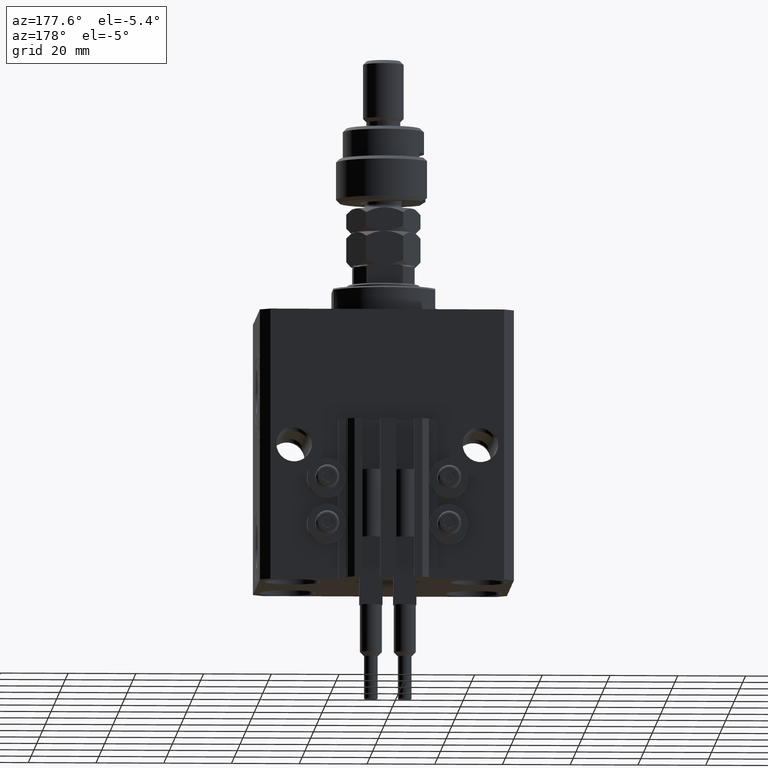
[diagram: clean part render]
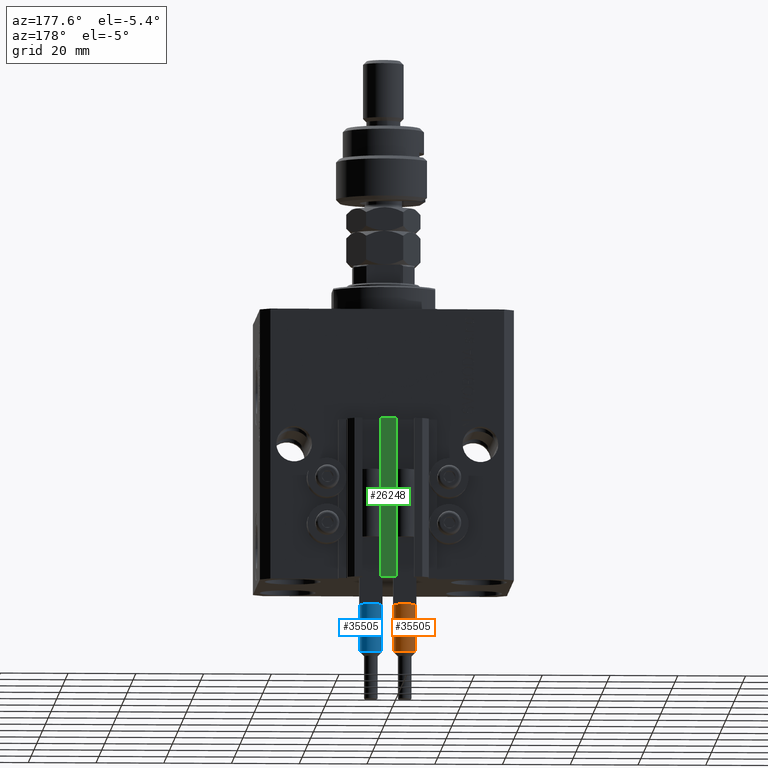
[diagram: same view with three faces highlighted in distinct colors, each labeled with its STEP entity id]
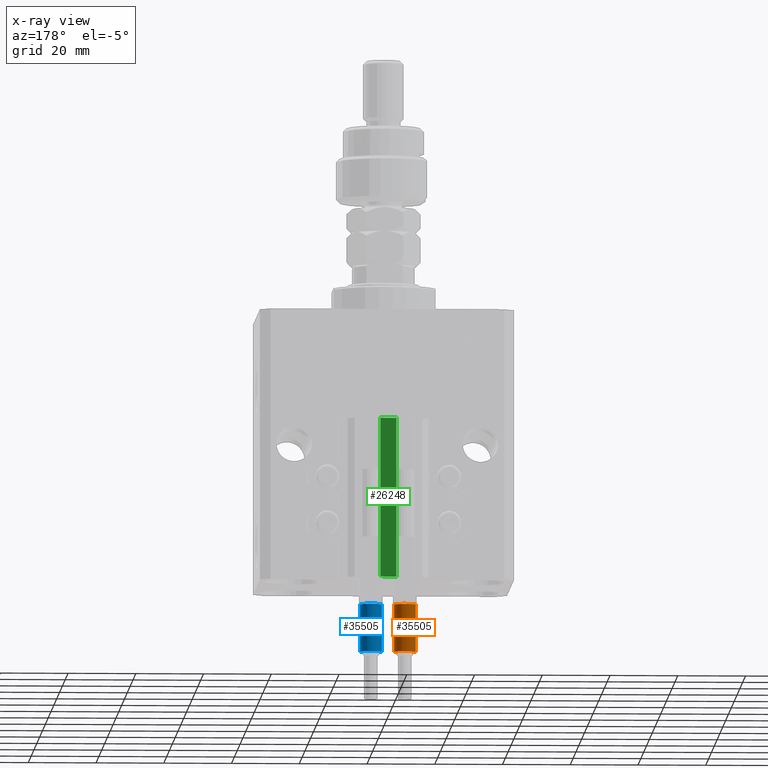
[diagram: x-ray of the same camera — body ghosted, the three highlighted faces saturated]
A machine part, auxiliary view with three faces highlighted in distinct colors.
The next image is the same camera in x-ray (body ghosted, the three faces saturated) — at least one of them is partly hidden behind the body in this view.
Their STEP definitions:

[orange] entity #35505 — the highlighted cylindrical surface (edge-blend (fillet) strip) has radius 3.25 mm, axis along (0, 0, 1).
#668 = EDGE_LOOP ( 'NONE', ( #35798, #33182, #36519, #5845, #20843, #8035 ) ) ;
#1826 = VERTEX_POINT ( 'NONE', #37590 ) ;
#3516 = DIRECTION ( 'NONE',  ( 1.000000000000000000, 0.000000000000000000, 0.000000000000000000 ) ) ;
#4477 = EDGE_CURVE ( 'NONE', #39780, #16009, #47089, .T. ) ;
#4652 = CARTESIAN_POINT ( 'NONE',  ( 3.250000000000000444, 3.980102097228898231E-16, 56.00000000000000000 ) ) ;
#5578 = DIRECTION ( 'NONE',  ( -1.000000000000000000, 0.000000000000000000, 0.000000000000000000 ) ) ;
#5845 = ORIENTED_EDGE ( 'NONE', *, *, #32558, .T. ) ;
#5905 = LINE ( 'NONE', #21478, #21469 ) ;
#7047 = CARTESIAN_POINT ( 'NONE',  ( -3.250000000000000444, 0.000000000000000000, 40.00000000000000000 ) ) ;
#7076 = EDGE_CURVE ( 'NONE', #1826, #16077, #10567, .T. ) ;
#7965 = AXIS2_PLACEMENT_3D ( 'NONE', #25428, #21351, #20332 ) ;
#8035 = ORIENTED_EDGE ( 'NONE', *, *, #32147, .F. ) ;
#8761 = CIRCLE ( 'NONE', #7965, 3.250000000000000444 ) ;
#8935 = EDGE_CURVE ( 'NONE', #16077, #24088, #39639, .T. ) ;
#10425 = CARTESIAN_POINT ( 'NONE',  ( 0.000000000000000000, 0.000000000000000000, 53.99999999999998579 ) ) ;
#10567 = CIRCLE ( 'NONE', #21175, 3.250000000000000444 ) ;
#10577 = CARTESIAN_POINT ( 'NONE',  ( -2.883140648667699146, 1.500000000000000000, 40.00000000000000000 ) ) ;
#12986 = CYLINDRICAL_SURFACE ( 'NONE', #46821, 3.250000000000000444 ) ;
#13893 = VECTOR ( 'NONE', #16391, 1000.000000000000000 ) ;
#14669 = CARTESIAN_POINT ( 'NONE',  ( 0.000000000000000000, 0.000000000000000000, 40.00000000000000000 ) ) ;
#15465 = CARTESIAN_POINT ( 'NONE',  ( 3.250000000000000444, 3.980102097228898231E-16, 53.99999999999998579 ) ) ;
#16009 = VERTEX_POINT ( 'NONE', #7047 ) ;
#16077 = VERTEX_POINT ( 'NONE', #15465 ) ;
#16391 = DIRECTION ( 'NONE',  ( -0.000000000000000000, -0.000000000000000000, -1.000000000000000000 ) ) ;
#16810 = CARTESIAN_POINT ( 'NONE',  ( 0.000000000000000000, 0.000000000000000000, 56.00000000000000000 ) ) ;
#18980 = AXIS2_PLACEMENT_3D ( 'NONE', #22418, #42082, #3516 ) ;
#20332 = DIRECTION ( 'NONE',  ( 1.000000000000000000, 0.000000000000000000, 0.000000000000000000 ) ) ;
#20843 = ORIENTED_EDGE ( 'NONE', *, *, #4477, .T. ) ;
#21175 = AXIS2_PLACEMENT_3D ( 'NONE', #10425, #32635, #36737 ) ;
#21351 = DIRECTION ( 'NONE',  ( 0.000000000000000000, 0.000000000000000000, 1.000000000000000000 ) ) ;
#21469 = VECTOR ( 'NONE', #37050, 1000.000000000000000 ) ;
#21478 = CARTESIAN_POINT ( 'NONE',  ( -3.250000000000000444, 0.000000000000000000, 56.00000000000000000 ) ) ;
#22418 = CARTESIAN_POINT ( 'NONE',  ( 0.000000000000000000, 0.000000000000000000, 40.00000000000000000 ) ) ;
#24088 = VERTEX_POINT ( 'NONE', #29073 ) ;
#25122 = CARTESIAN_POINT ( 'NONE',  ( 2.883140648667699146, 1.500000000000000000, 40.00000000000000000 ) ) ;
#25428 = CARTESIAN_POINT ( 'NONE',  ( 0.000000000000000000, 0.000000000000000000, 40.00000000000000000 ) ) ;
#26645 = DIRECTION ( 'NONE',  ( 0.000000000000000000, 0.000000000000000000, 1.000000000000000000 ) ) ;
#27991 = EDGE_CURVE ( 'NONE', #24088, #29485, #8761, .T. ) ;
#29073 = CARTESIAN_POINT ( 'NONE',  ( 3.250000000000000444, 3.980102097228898231E-16, 40.00000000000000000 ) ) ;
#29485 = VERTEX_POINT ( 'NONE', #25122 ) ;
#29566 = CIRCLE ( 'NONE', #18980, 3.250000000000000444 ) ;
#29981 = AXIS2_PLACEMENT_3D ( 'NONE', #14669, #26645, #49640 ) ;
#32147 = EDGE_CURVE ( 'NONE', #1826, #16009, #5905, .T. ) ;
#32366 = DIRECTION ( 'NONE',  ( -0.000000000000000000, -0.000000000000000000, -1.000000000000000000 ) ) ;
#32558 = EDGE_CURVE ( 'NONE', #29485, #39780, #29566, .T. ) ;
#32635 = DIRECTION ( 'NONE',  ( 0.000000000000000000, 0.000000000000000000, -1.000000000000000000 ) ) ;
#33182 = ORIENTED_EDGE ( 'NONE', *, *, #8935, .T. ) ;
#35505 = ADVANCED_FACE ( 'NONE', ( #48205 ), #12986, .T. ) ;
#35798 = ORIENTED_EDGE ( 'NONE', *, *, #7076, .T. ) ;
#36519 = ORIENTED_EDGE ( 'NONE', *, *, #27991, .T. ) ;
#36737 = DIRECTION ( 'NONE',  ( 1.000000000000000000, 0.000000000000000000, 0.000000000000000000 ) ) ;
#37050 = DIRECTION ( 'NONE',  ( -0.000000000000000000, -0.000000000000000000, -1.000000000000000000 ) ) ;
#37590 = CARTESIAN_POINT ( 'NONE',  ( -3.250000000000000444, 0.000000000000000000, 53.99999999999998579 ) ) ;
#39639 = LINE ( 'NONE', #4652, #13893 ) ;
#39780 = VERTEX_POINT ( 'NONE', #10577 ) ;
#42082 = DIRECTION ( 'NONE',  ( 0.000000000000000000, 0.000000000000000000, 1.000000000000000000 ) ) ;
#46821 = AXIS2_PLACEMENT_3D ( 'NONE', #16810, #32366, #5578 ) ;
#47089 = CIRCLE ( 'NONE', #29981, 3.250000000000000444 ) ;
#48205 = FACE_OUTER_BOUND ( 'NONE', #668, .T. ) ;
#49640 = DIRECTION ( 'NONE',  ( 1.000000000000000000, 0.000000000000000000, 0.000000000000000000 ) ) ;

[blue] entity #35505 — the highlighted cylindrical surface (edge-blend (fillet) strip) has radius 3.25 mm, axis along (0, 0, 1).
#668 = EDGE_LOOP ( 'NONE', ( #35798, #33182, #36519, #5845, #20843, #8035 ) ) ;
#1826 = VERTEX_POINT ( 'NONE', #37590 ) ;
#3516 = DIRECTION ( 'NONE',  ( 1.000000000000000000, 0.000000000000000000, 0.000000000000000000 ) ) ;
#4477 = EDGE_CURVE ( 'NONE', #39780, #16009, #47089, .T. ) ;
#4652 = CARTESIAN_POINT ( 'NONE',  ( 3.250000000000000444, 3.980102097228898231E-16, 56.00000000000000000 ) ) ;
#5578 = DIRECTION ( 'NONE',  ( -1.000000000000000000, 0.000000000000000000, 0.000000000000000000 ) ) ;
#5845 = ORIENTED_EDGE ( 'NONE', *, *, #32558, .T. ) ;
#5905 = LINE ( 'NONE', #21478, #21469 ) ;
#7047 = CARTESIAN_POINT ( 'NONE',  ( -3.250000000000000444, 0.000000000000000000, 40.00000000000000000 ) ) ;
#7076 = EDGE_CURVE ( 'NONE', #1826, #16077, #10567, .T. ) ;
#7965 = AXIS2_PLACEMENT_3D ( 'NONE', #25428, #21351, #20332 ) ;
#8035 = ORIENTED_EDGE ( 'NONE', *, *, #32147, .F. ) ;
#8761 = CIRCLE ( 'NONE', #7965, 3.250000000000000444 ) ;
#8935 = EDGE_CURVE ( 'NONE', #16077, #24088, #39639, .T. ) ;
#10425 = CARTESIAN_POINT ( 'NONE',  ( 0.000000000000000000, 0.000000000000000000, 53.99999999999998579 ) ) ;
#10567 = CIRCLE ( 'NONE', #21175, 3.250000000000000444 ) ;
#10577 = CARTESIAN_POINT ( 'NONE',  ( -2.883140648667699146, 1.500000000000000000, 40.00000000000000000 ) ) ;
#12986 = CYLINDRICAL_SURFACE ( 'NONE', #46821, 3.250000000000000444 ) ;
#13893 = VECTOR ( 'NONE', #16391, 1000.000000000000000 ) ;
#14669 = CARTESIAN_POINT ( 'NONE',  ( 0.000000000000000000, 0.000000000000000000, 40.00000000000000000 ) ) ;
#15465 = CARTESIAN_POINT ( 'NONE',  ( 3.250000000000000444, 3.980102097228898231E-16, 53.99999999999998579 ) ) ;
#16009 = VERTEX_POINT ( 'NONE', #7047 ) ;
#16077 = VERTEX_POINT ( 'NONE', #15465 ) ;
#16391 = DIRECTION ( 'NONE',  ( -0.000000000000000000, -0.000000000000000000, -1.000000000000000000 ) ) ;
#16810 = CARTESIAN_POINT ( 'NONE',  ( 0.000000000000000000, 0.000000000000000000, 56.00000000000000000 ) ) ;
#18980 = AXIS2_PLACEMENT_3D ( 'NONE', #22418, #42082, #3516 ) ;
#20332 = DIRECTION ( 'NONE',  ( 1.000000000000000000, 0.000000000000000000, 0.000000000000000000 ) ) ;
#20843 = ORIENTED_EDGE ( 'NONE', *, *, #4477, .T. ) ;
#21175 = AXIS2_PLACEMENT_3D ( 'NONE', #10425, #32635, #36737 ) ;
#21351 = DIRECTION ( 'NONE',  ( 0.000000000000000000, 0.000000000000000000, 1.000000000000000000 ) ) ;
#21469 = VECTOR ( 'NONE', #37050, 1000.000000000000000 ) ;
#21478 = CARTESIAN_POINT ( 'NONE',  ( -3.250000000000000444, 0.000000000000000000, 56.00000000000000000 ) ) ;
#22418 = CARTESIAN_POINT ( 'NONE',  ( 0.000000000000000000, 0.000000000000000000, 40.00000000000000000 ) ) ;
#24088 = VERTEX_POINT ( 'NONE', #29073 ) ;
#25122 = CARTESIAN_POINT ( 'NONE',  ( 2.883140648667699146, 1.500000000000000000, 40.00000000000000000 ) ) ;
#25428 = CARTESIAN_POINT ( 'NONE',  ( 0.000000000000000000, 0.000000000000000000, 40.00000000000000000 ) ) ;
#26645 = DIRECTION ( 'NONE',  ( 0.000000000000000000, 0.000000000000000000, 1.000000000000000000 ) ) ;
#27991 = EDGE_CURVE ( 'NONE', #24088, #29485, #8761, .T. ) ;
#29073 = CARTESIAN_POINT ( 'NONE',  ( 3.250000000000000444, 3.980102097228898231E-16, 40.00000000000000000 ) ) ;
#29485 = VERTEX_POINT ( 'NONE', #25122 ) ;
#29566 = CIRCLE ( 'NONE', #18980, 3.250000000000000444 ) ;
#29981 = AXIS2_PLACEMENT_3D ( 'NONE', #14669, #26645, #49640 ) ;
#32147 = EDGE_CURVE ( 'NONE', #1826, #16009, #5905, .T. ) ;
#32366 = DIRECTION ( 'NONE',  ( -0.000000000000000000, -0.000000000000000000, -1.000000000000000000 ) ) ;
#32558 = EDGE_CURVE ( 'NONE', #29485, #39780, #29566, .T. ) ;
#32635 = DIRECTION ( 'NONE',  ( 0.000000000000000000, 0.000000000000000000, -1.000000000000000000 ) ) ;
#33182 = ORIENTED_EDGE ( 'NONE', *, *, #8935, .T. ) ;
#35505 = ADVANCED_FACE ( 'NONE', ( #48205 ), #12986, .T. ) ;
#35798 = ORIENTED_EDGE ( 'NONE', *, *, #7076, .T. ) ;
#36519 = ORIENTED_EDGE ( 'NONE', *, *, #27991, .T. ) ;
#36737 = DIRECTION ( 'NONE',  ( 1.000000000000000000, 0.000000000000000000, 0.000000000000000000 ) ) ;
#37050 = DIRECTION ( 'NONE',  ( -0.000000000000000000, -0.000000000000000000, -1.000000000000000000 ) ) ;
#37590 = CARTESIAN_POINT ( 'NONE',  ( -3.250000000000000444, 0.000000000000000000, 53.99999999999998579 ) ) ;
#39639 = LINE ( 'NONE', #4652, #13893 ) ;
#39780 = VERTEX_POINT ( 'NONE', #10577 ) ;
#42082 = DIRECTION ( 'NONE',  ( 0.000000000000000000, 0.000000000000000000, 1.000000000000000000 ) ) ;
#46821 = AXIS2_PLACEMENT_3D ( 'NONE', #16810, #32366, #5578 ) ;
#47089 = CIRCLE ( 'NONE', #29981, 3.250000000000000444 ) ;
#48205 = FACE_OUTER_BOUND ( 'NONE', #668, .T. ) ;
#49640 = DIRECTION ( 'NONE',  ( 1.000000000000000000, 0.000000000000000000, 0.000000000000000000 ) ) ;

[green] entity #26248 — the highlighted planar face has unit normal (0, -1, 0).
#1704 = LINE ( 'NONE', #37184, #10604 ) ;
#5110 = DIRECTION ( 'NONE',  ( 0.000000000000000000, -1.000000000000000000, 0.000000000000000000 ) ) ;
#5630 = DIRECTION ( 'NONE',  ( 0.000000000000000000, -0.000000000000000000, -1.000000000000000000 ) ) ;
#6122 = VECTOR ( 'NONE', #7694, 1000.000000000000000 ) ;
#6665 = ORIENTED_EDGE ( 'NONE', *, *, #7539, .T. ) ;
#7090 = AXIS2_PLACEMENT_3D ( 'NONE', #40096, #5110, #5630 ) ;
#7539 = EDGE_CURVE ( 'NONE', #14806, #28025, #1704, .T. ) ;
#7694 = DIRECTION ( 'NONE',  ( 0.000000000000000000, 0.000000000000000000, 1.000000000000000000 ) ) ;
#8360 = DIRECTION ( 'NONE',  ( 1.000000000000000000, 0.000000000000000000, 0.000000000000000000 ) ) ;
#9779 = CARTESIAN_POINT ( 'NONE',  ( -2.350000000000003642, 35.50000000000001421, -80.00000000000000000 ) ) ;
#10604 = VECTOR ( 'NONE', #28997, 1000.000000000000000 ) ;
#12201 = VERTEX_POINT ( 'NONE', #26236 ) ;
#13159 = DIRECTION ( 'NONE',  ( 0.000000000000000000, 0.000000000000000000, 1.000000000000000000 ) ) ;
#14806 = VERTEX_POINT ( 'NONE', #49845 ) ;
#16517 = LINE ( 'NONE', #32081, #41118 ) ;
#16702 = EDGE_CURVE ( 'NONE', #18025, #12201, #16517, .T. ) ;
#18025 = VERTEX_POINT ( 'NONE', #9779 ) ;
#18492 = EDGE_LOOP ( 'NONE', ( #6665, #19640, #35516, #33961 ) ) ;
#19640 = ORIENTED_EDGE ( 'NONE', *, *, #40306, .F. ) ;
#21842 = EDGE_CURVE ( 'NONE', #18025, #14806, #40479, .T. ) ;
#24019 = VECTOR ( 'NONE', #13159, 1000.000000000000000 ) ;
#26236 = CARTESIAN_POINT ( 'NONE',  ( 2.349999999999999645, 35.50000000000001421, -80.00000000000000000 ) ) ;
#26248 = ADVANCED_FACE ( 'NONE', ( #47748 ), #43926, .F. ) ;
#28025 = VERTEX_POINT ( 'NONE', #28988 ) ;
#28988 = CARTESIAN_POINT ( 'NONE',  ( 2.349999999999999645, 35.50000000000001421, -33.00000000000000000 ) ) ;
#28997 = DIRECTION ( 'NONE',  ( 1.000000000000000000, 0.000000000000000000, 0.000000000000000000 ) ) ;
#32081 = CARTESIAN_POINT ( 'NONE',  ( -2.350000000000003642, 35.50000000000001421, -80.00000000000000000 ) ) ;
#32799 = CARTESIAN_POINT ( 'NONE',  ( -2.350000000000003642, 35.50000000000001421, -80.00000000000000000 ) ) ;
#33961 = ORIENTED_EDGE ( 'NONE', *, *, #21842, .T. ) ;
#35516 = ORIENTED_EDGE ( 'NONE', *, *, #16702, .F. ) ;
#37184 = CARTESIAN_POINT ( 'NONE',  ( -2.350000000000003642, 35.50000000000001421, -33.00000000000000000 ) ) ;
#39101 = CARTESIAN_POINT ( 'NONE',  ( 2.349999999999999645, 35.50000000000001421, -80.00000000000000000 ) ) ;
#40096 = CARTESIAN_POINT ( 'NONE',  ( -2.350000000000003642, 35.50000000000001421, -80.00000000000000000 ) ) ;
#40306 = EDGE_CURVE ( 'NONE', #12201, #28025, #42675, .T. ) ;
#40479 = LINE ( 'NONE', #32799, #24019 ) ;
#41118 = VECTOR ( 'NONE', #8360, 1000.000000000000000 ) ;
#42675 = LINE ( 'NONE', #39101, #6122 ) ;
#43926 = PLANE ( 'NONE',  #7090 ) ;
#47748 = FACE_OUTER_BOUND ( 'NONE', #18492, .T. ) ;
#49845 = CARTESIAN_POINT ( 'NONE',  ( -2.350000000000003642, 35.50000000000001421, -33.00000000000000000 ) ) ;